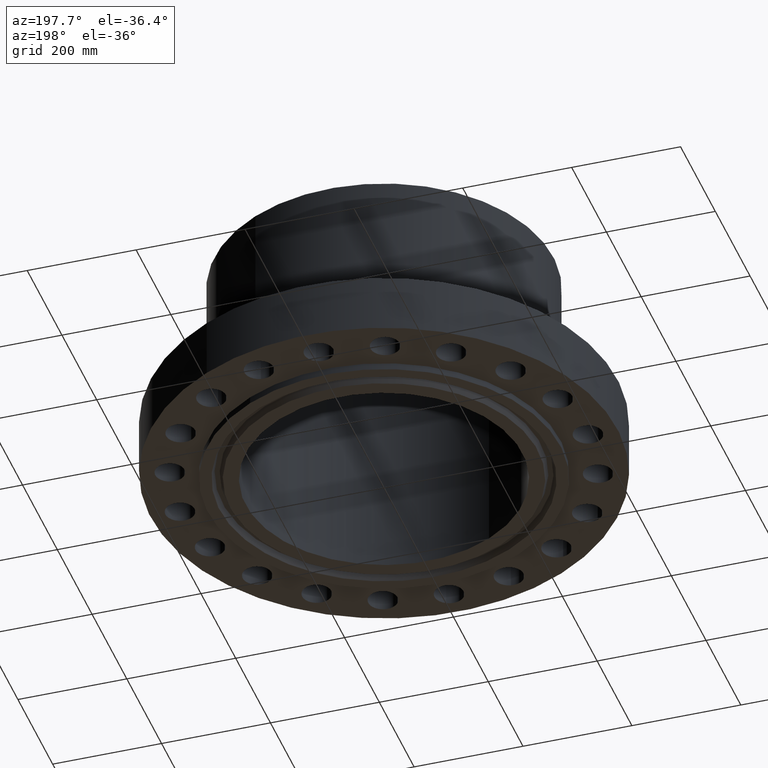
[diagram: clean part render]
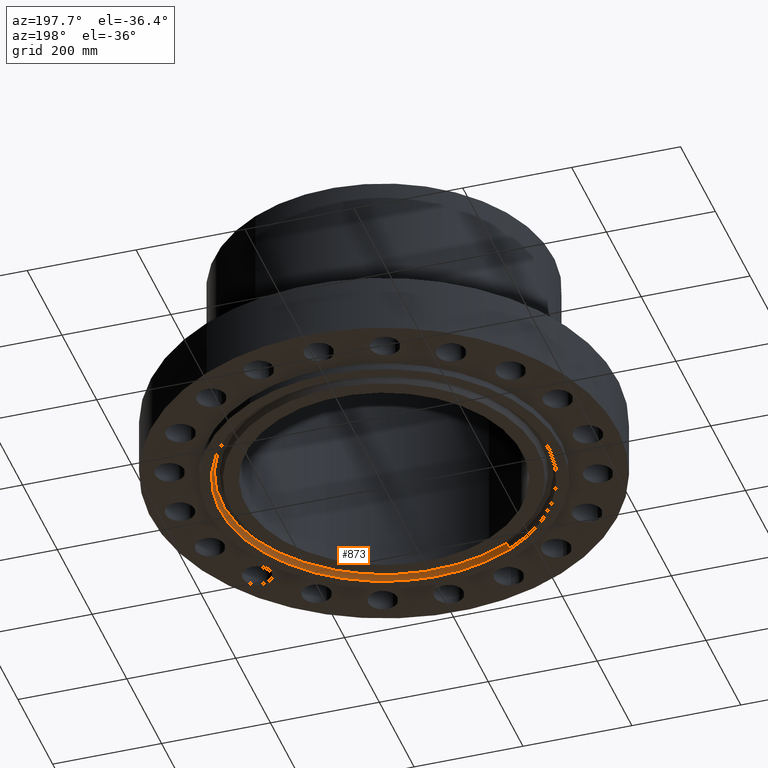
[diagram: same view with one face highlighted and labeled with its STEP entity id]
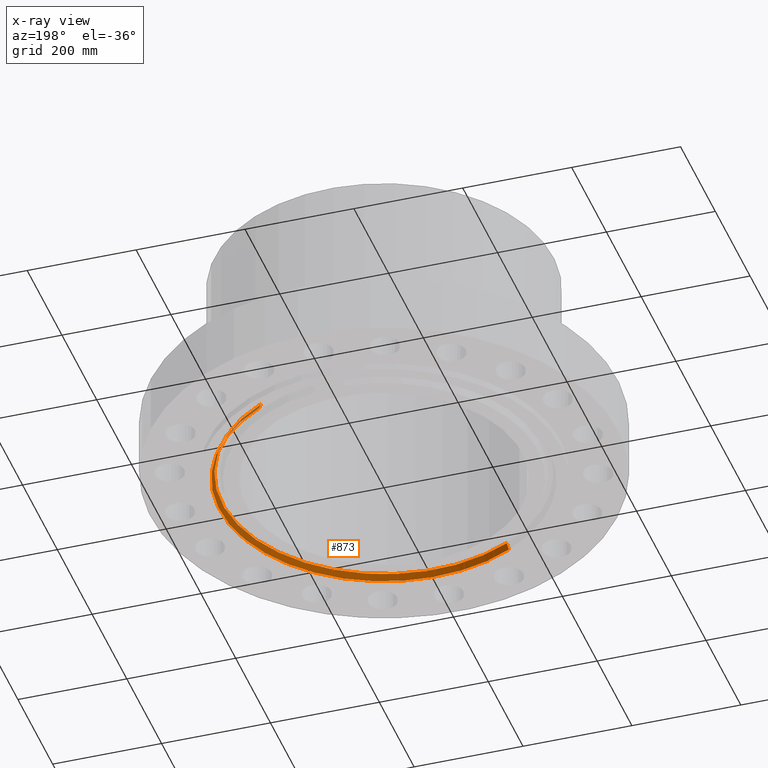
[diagram: x-ray of the same camera — body ghosted, the highlighted face saturated]
A machine part, auxiliary view. The second image highlights one B-rep face of the part: STEP entity #873.
The next image is the same camera in x-ray: the body ghosted, the highlighted face saturated — about 0% of this face is hidden behind the body in this view.
In plain terms, the highlighted conical surface has half-angle 23 deg.
Its self-contained STEP definition (entity closure, byte-faithful):
#821=AXIS2_PLACEMENT_3D('Circle Axis2P3D',#819,#820,$) ;
#834=AXIS2_PLACEMENT_3D('Cone Axis2P3D',#831,#832,#833) ;
#864=AXIS2_PLACEMENT_3D('Circle Axis2P3D',#862,#863,$) ;
#797=CARTESIAN_POINT('Vertex',(-5.60666862079,-10.2629380701,-0.0383839389053)) ;
#804=CARTESIAN_POINT('Vertex',(5.60666862079,10.2629380701,-0.0383839389053)) ;
#819=CARTESIAN_POINT('Axis2P3D Location',(0.,0.,-0.0383839389053)) ;
#831=CARTESIAN_POINT('Axis2P3D Location',(0.,0.,-0.0383839389053)) ;
#836=CARTESIAN_POINT('Line Origine',(-5.65363899379,-10.3489167611,-0.269191969454)) ;
#840=CARTESIAN_POINT('Vertex',(-5.7006093668,-10.4348954522,-0.500000000002)) ;
#847=CARTESIAN_POINT('Vertex',(5.7006093668,10.4348954522,-0.500000000002)) ;
#850=CARTESIAN_POINT('Line Origine',(5.65363899379,10.3489167611,-0.269191969454)) ;
#862=CARTESIAN_POINT('Axis2P3D Location',(0.,0.,-0.500000000002)) ;
#820=DIRECTION('Axis2P3D Direction',(0.,0.,-0.0393700787402)) ;
#832=DIRECTION('Axis2P3D Direction',(0.,0.,-0.0393700787402)) ;
#833=DIRECTION('Axis2P3D XDirection',(0.0188750212049,0.0345504945626,0.)) ;
#837=DIRECTION('Vector Direction',(-0.00737505833565,-0.0134999537303,-0.0362403485611)) ;
#851=DIRECTION('Vector Direction',(0.00737505833565,0.0134999537303,-0.0362403485611)) ;
#863=DIRECTION('Axis2P3D Direction',(0.,0.,-0.0393700787402)) ;
#838=VECTOR('Line Direction',#837,0.0393700787402) ;
#852=VECTOR('Line Direction',#851,0.0393700787402) ;
#868=ORIENTED_EDGE('',*,*,#823,.F.) ;
#869=ORIENTED_EDGE('',*,*,#854,.T.) ;
#870=ORIENTED_EDGE('',*,*,#866,.T.) ;
#871=ORIENTED_EDGE('',*,*,#842,.F.) ;
#873=ADVANCED_FACE('PartBody',(#872),#835,.F.) ;
#822=CIRCLE('generated circle',#821,11.6945556074) ;
#865=CIRCLE('generated circle',#864,11.8905) ;
#835=CONICAL_SURFACE('Cone',#834,11.6945556074,0.401425727959) ;
#823=EDGE_CURVE('',#805,#798,#822,.T.) ;
#842=EDGE_CURVE('',#798,#841,#839,.T.) ;
#854=EDGE_CURVE('',#805,#848,#853,.T.) ;
#866=EDGE_CURVE('',#848,#841,#865,.T.) ;
#867=EDGE_LOOP('',(#868,#869,#870,#871)) ;
#872=FACE_OUTER_BOUND('',#867,.T.) ;
#839=LINE('Line',#836,#838) ;
#853=LINE('Line',#850,#852) ;
#798=VERTEX_POINT('',#797) ;
#805=VERTEX_POINT('',#804) ;
#841=VERTEX_POINT('',#840) ;
#848=VERTEX_POINT('',#847) ;